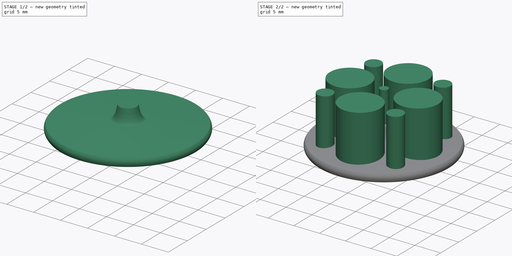
[diagram: build sequence overview — one tinted view per stage of 2, left to right]
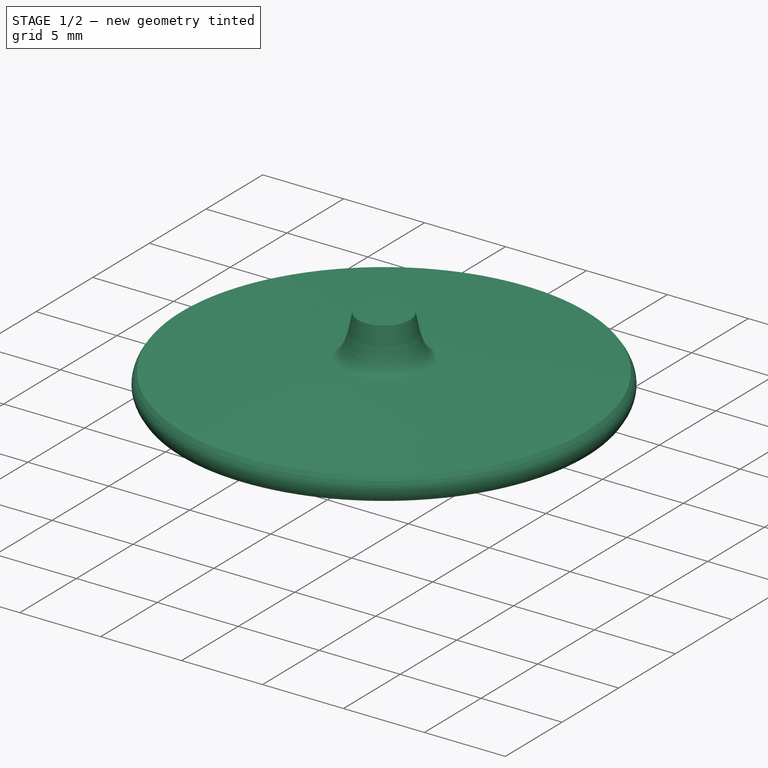
[diagram: stage 1 of 2 — iso view after this stage's code; geometry added in this stage tinted green]
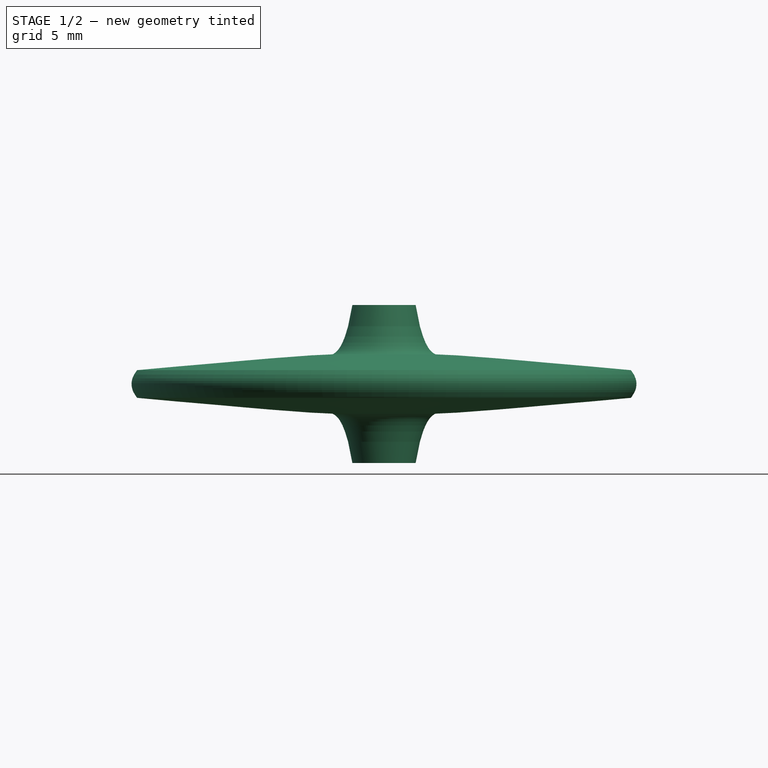
[diagram: stage 1 of 2 — front view after this stage's code; geometry added in this stage tinted green]
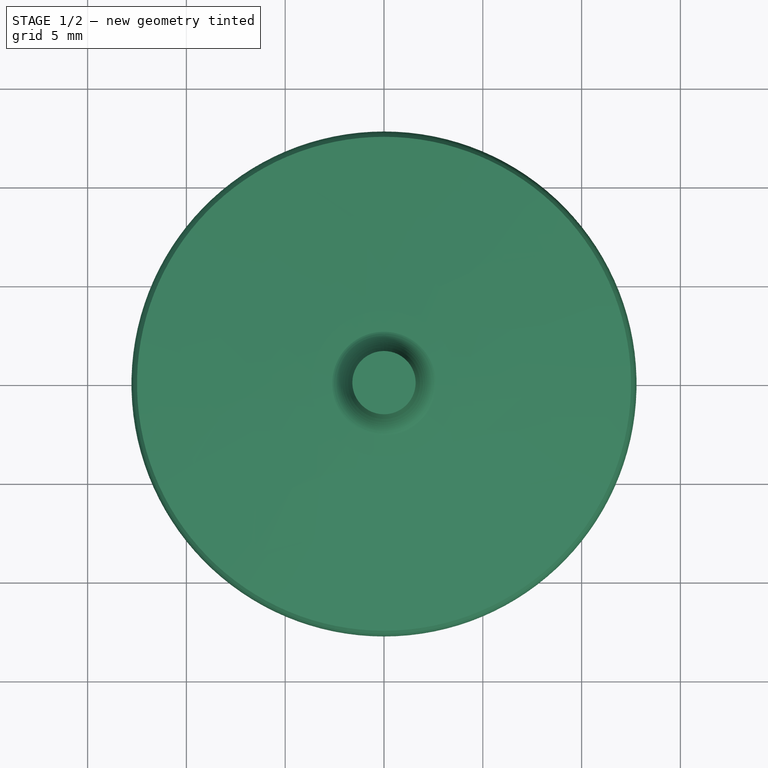
[diagram: stage 1 of 2 — top view after this stage's code; geometry added in this stage tinted green]
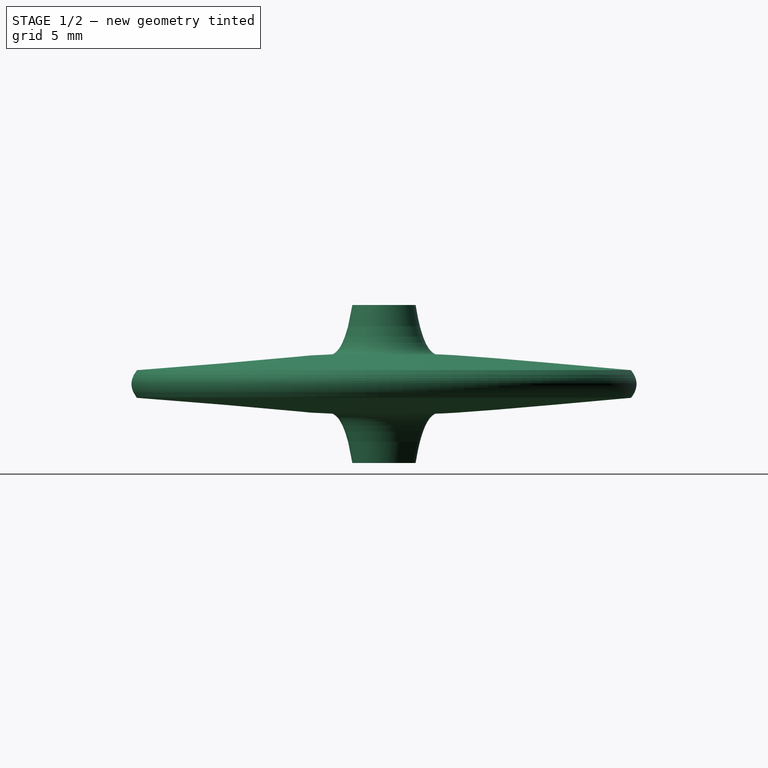
[diagram: stage 1 of 2 — right view after this stage's code; geometry added in this stage tinted green]
FCSTD DOCUMENT  (FreeCAD 0.19R0.19.2)
Label: 009
License: All rights reserved
LicenseURL: http://en.wikipedia.org/wiki/All_rights_reserved
objects: Sketcher::SketchObject×2, Part::Extrusion×1, Part::Revolution×1
note: 4 computed .brp shape members not serialized (recipe doc carries the construction recipe); baked Part::Feature solids carry a one-line shape summary decoded from their .brp

FEATURE [Sketcher::SketchObject] Sketch001
  FullyConstrained = true
  Placement = pos=(0,0,0) rot=(0.57735,0.57735,0.57735;2.0944rad)
  sketch-geometry (63):
    g0: LineSegment StartX=1.6 StartY=4 StartZ=0 EndX=0 EndY=4 EndZ=0
    g1: Circle CenterX=12.5 CenterY=0.7 CenterZ=0 NormalX=0 NormalY=0 NormalZ=1 AngleXU=0 Radius=1
    g2: Circle CenterX=13.06 CenterY=0 CenterZ=0 NormalX=0 NormalY=0 NormalZ=1 AngleXU=0 Radius=1
    g3: Circle CenterX=12.5 CenterY=-0.7 CenterZ=0 NormalX=0 NormalY=0 NormalZ=1 AngleXU=0 Radius=1
    g4: BSplineCurve PolesCount=3 KnotsCount=2 Degree=2 IsPeriodic=0
    g5: GeomPoint X=12.5 Y=0.7 Z=0
    g6: GeomPoint X=12.5 Y=-0.7 Z=0
    g7: Circle CenterX=1.6 CenterY=4 CenterZ=0 NormalX=0 NormalY=0 NormalZ=1 AngleXU=0 Radius=1
    g8: Circle CenterX=1.96118 CenterY=1.73941 CenterZ=0 NormalX=0 NormalY=0 NormalZ=1 AngleXU=0 Radius=1
    g9: Circle CenterX=2.61896 CenterY=1.5 CenterZ=0 NormalX=0 NormalY=0 NormalZ=1 AngleXU=0 Radius=1
    g10: BSplineCurve PolesCount=3 KnotsCount=2 Degree=2 IsPeriodic=0
    g11: GeomPoint X=1.6 Y=4 Z=0
    g12: GeomPoint X=2.61896 Y=1.5 Z=0
    g13: LineSegment StartX=1.6 StartY=-4 StartZ=0 EndX=0 EndY=-4 EndZ=0
    g14: LineSegment StartX=0 StartY=-4 StartZ=0 EndX=0 EndY=4 EndZ=0
    g15: Circle CenterX=1.6 CenterY=-4 CenterZ=0 NormalX=0 NormalY=0 NormalZ=1 AngleXU=0 Radius=1
    g16: Circle CenterX=1.96118 CenterY=-1.73941 CenterZ=0 NormalX=0 NormalY=0 NormalZ=1 AngleXU=0 Radius=1
    g17: Circle CenterX=2.61896 CenterY=-1.5 CenterZ=0 NormalX=0 NormalY=0 NormalZ=1 AngleXU=0 Radius=1
    g18: BSplineCurve PolesCount=3 KnotsCount=2 Degree=2 IsPeriodic=0
    g19: GeomPoint X=1.6 Y=-4 Z=0
    g20: GeomPoint X=2.61896 Y=-1.5 Z=0
    g21: Circle CenterX=12.5 CenterY=0.7 CenterZ=0 NormalX=0 NormalY=0 NormalZ=1 AngleXU=0 Radius=1
    g22: Circle CenterX=3.81896 CenterY=1.5 CenterZ=0 NormalX=0 NormalY=0 NormalZ=1 AngleXU=0 Radius=1
    g23: Circle CenterX=2.61896 CenterY=1.5 CenterZ=0 NormalX=0 NormalY=0 NormalZ=1 AngleXU=0 Radius=1
    g24: BSplineCurve PolesCount=3 KnotsCount=2 Degree=2 IsPeriodic=0
    g25: GeomPoint X=12.5 Y=0.7 Z=0
    g26: GeomPoint X=2.61896 Y=1.5 Z=0
    g27: Circle CenterX=12.5 CenterY=-0.7 CenterZ=0 NormalX=0 NormalY=0 NormalZ=1 AngleXU=0 Radius=1
    g28: Circle CenterX=3.81896 CenterY=-1.5 CenterZ=0 NormalX=0 NormalY=0 NormalZ=1 AngleXU=0 Radius=1
    g29: Circle CenterX=2.61896 CenterY=-1.5 CenterZ=0 NormalX=0 NormalY=0 NormalZ=1 AngleXU=0 Radius=1
    g30: BSplineCurve PolesCount=3 KnotsCount=2 Degree=2 IsPeriodic=0
    g31: GeomPoint X=12.5 Y=-0.7 Z=0
    g32: GeomPoint X=2.61896 Y=-1.5 Z=0
    g33: LineSegment StartX=2.61896 StartY=1.5 StartZ=0 EndX=2.61896 EndY=1.7 EndZ=0
    g34: LineSegment StartX=1.96118 StartY=1.73941 StartZ=0 EndX=1.96118 EndY=1.93941 EndZ=0
    g35: LineSegment StartX=2.61896 StartY=-1.5 StartZ=0 EndX=2.61896 EndY=-1.7 EndZ=0
    g36: LineSegment StartX=1.96118 StartY=-1.73941 StartZ=0 EndX=1.96118 EndY=-1.93941 EndZ=0
    g37: LineSegment StartX=3.81896 StartY=-1.5 StartZ=0 EndX=3.81896 EndY=-1.6 EndZ=0
    g38: LineSegment StartX=3.81896 StartY=1.5 StartZ=0 EndX=3.81896 EndY=1.6 EndZ=0
    g39: Circle CenterX=1.6 CenterY=4 CenterZ=0 NormalX=0 NormalY=0 NormalZ=1 AngleXU=0 Radius=1
    g40: Circle CenterX=1.96118 CenterY=1.93941 CenterZ=0 NormalX=0 NormalY=0 NormalZ=1 AngleXU=0 Radius=1
    g41: Circle CenterX=2.61896 CenterY=1.7 CenterZ=0 NormalX=0 NormalY=0 NormalZ=1 AngleXU=0 Radius=1
    g42: BSplineCurve PolesCount=3 KnotsCount=2 Degree=2 IsPeriodic=0
    g43: GeomPoint X=1.6 Y=4 Z=0
    g44: GeomPoint X=2.61896 Y=1.7 Z=0
    g45: Circle CenterX=2.61896 CenterY=1.7 CenterZ=0 NormalX=0 NormalY=0 NormalZ=1 AngleXU=0 Radius=1
    g46: Circle CenterX=3.81896 CenterY=1.5 CenterZ=0 NormalX=0 NormalY=0 NormalZ=1 AngleXU=0 Radius=1
    g47: Circle CenterX=12.5 CenterY=0.7 CenterZ=0 NormalX=0 NormalY=0 NormalZ=1 AngleXU=0 Radius=1
    g48: BSplineCurve PolesCount=3 KnotsCount=2 Degree=2 IsPeriodic=0
    g49: GeomPoint X=2.61896 Y=1.7 Z=0
    g50: GeomPoint X=12.5 Y=0.7 Z=0
    g51: Circle CenterX=1.6 CenterY=-4 CenterZ=0 NormalX=0 NormalY=0 NormalZ=1 AngleXU=0 Radius=1
    g52: Circle CenterX=1.96118 CenterY=-1.93941 CenterZ=0 NormalX=0 NormalY=0 NormalZ=1 AngleXU=0 Radius=1
    g53: Circle CenterX=2.61896 CenterY=-1.7 CenterZ=0 NormalX=0 NormalY=0 NormalZ=1 AngleXU=0 Radius=1
    g54: BSplineCurve PolesCount=3 KnotsCount=2 Degree=2 IsPeriodic=0
    g55: GeomPoint X=1.6 Y=-4 Z=0
    g56: GeomPoint X=2.61896 Y=-1.7 Z=0
    g57: Circle CenterX=2.61896 CenterY=-1.7 CenterZ=0 NormalX=0 NormalY=0 NormalZ=1 AngleXU=0 Radius=1
    g58: Circle CenterX=3.81896 CenterY=-1.5 CenterZ=0 NormalX=0 NormalY=0 NormalZ=1 AngleXU=0 Radius=1
    g59: Circle CenterX=12.5 CenterY=-0.7 CenterZ=0 NormalX=0 NormalY=0 NormalZ=1 AngleXU=0 Radius=1
    g60: BSplineCurve PolesCount=3 KnotsCount=2 Degree=2 IsPeriodic=0
    g61: GeomPoint X=2.61896 Y=-1.7 Z=0
    g62: GeomPoint X=12.5 Y=-0.7 Z=0
  constraints (120):
    c: Horizontal(g0)
    c: Distance(g0) = 1.6
    c: Weight(g1) = 1
    c: Equal(g1,g2)
    c: Equal(g1,g3)
    c: InternalAlignment(g1,g4)
    c: InternalAlignment(g2,g4)
    c: InternalAlignment(g3,g4)
    c: InternalAlignment(g5,g4)
    c: InternalAlignment(g6,g4)
    c: Block(g4)
    c: Block(g0)
    c: Coincident(g10,g0)
    c: Weight(g7) = 1
    c: Equal(g7,g8)
    c: Equal(g7,g9)
    c: InternalAlignment(g7,g10)
    c: InternalAlignment(g8,g10)
    c: InternalAlignment(g9,g10)
    c: InternalAlignment(g11,g10)
    c: InternalAlignment(g12,g10)
    c: Horizontal(g13)
    c: Distance(g13) = 1.6
    c: Coincident(g14,g13)
    c: Coincident(g14,g0)
    c: Vertical(g14)
    c: Block(g13)
    c: Coincident(g18,g13)
    c: Weight(g15) = 1
    c: Equal(g15,g16)
    c: Equal(g15,g17)
    c: InternalAlignment(g15,g18)
    c: InternalAlignment(g16,g18)
    c: InternalAlignment(g17,g18)
    c: InternalAlignment(g19,g18)
    c: InternalAlignment(g20,g18)
    c: Block(g18)
    c: Block(g10)
    c: Coincident(g24,g4)
    c: Weight(g21) = 1
    c: Equal(g21,g22)
    c: Equal(g21,g23)
    c: InternalAlignment(g21,g24)
    c: InternalAlignment(g22,g24)
    c: InternalAlignment(g23,g24)
    c: InternalAlignment(g25,g24)
    c: InternalAlignment(g26,g24)
    c: Coincident(g30,g4)
    c: Weight(g27) = 1
    c: Equal(g27,g28)
    c: Equal(g27,g29)
    c: InternalAlignment(g27,g30)
    c: InternalAlignment(g28,g30)
    c: InternalAlignment(g29,g30)
    c: InternalAlignment(g31,g30)
    c: InternalAlignment(g32,g30)
    c: Block(g24)
    c: Block(g30)
    c: Coincident(g33,g10)
    c: Vertical(g33)
    c: Distance(g33) = 0.2
    c: Vertical(g34)
    c: Equal(g33,g34) = 0.6
    c: Coincident(g34,g8)
    c: Coincident(g35,g18)
    c: Vertical(g35)
    c: Distance(g35) = 0.2
    c: Vertical(g36)
    c: Equal(g35,g36) = 0.2
    c: Coincident(g36,g16)
    c: Coincident(g37,g28)
    c: Vertical(g37)
    c: Distance(g37) = 0.1
    c: Coincident(g38,g22)
    c: Vertical(g38)
    c: Distance(g38) = 0.1
    c: Coincident(g42,g0)
    c: Weight(g39) = 1
    c: Equal(g39,g40)
    c: Coincident(g40,g34)
    c: Equal(g39,g41)
    c: Coincident(g42,g33)
    c: InternalAlignment(g39,g42)
    c: InternalAlignment(g40,g42)
    c: InternalAlignment(g41,g42)
    c: InternalAlignment(g43,g42)
    c: InternalAlignment(g44,g42)
    c: Coincident(g48,g33)
    c: Weight(g45) = 1
    c: Equal(g45,g46)
    c: Coincident(g46,g38)
    c: Equal(g45,g47)
    c: Coincident(g48,g4)
    c: InternalAlignment(g45,g48)
    c: InternalAlignment(g46,g48)
    c: InternalAlignment(g47,g48)
    c: InternalAlignment(g49,g48)
    c: InternalAlignment(g50,g48)
    c: Coincident(g54,g13)
    c: Weight(g51) = 1
    c: Equal(g51,g52)
    c: Coincident(g52,g36)
    c: Equal(g51,g53)
    c: Coincident(g54,g35)
    c: InternalAlignment(g51,g54)
    c: InternalAlignment(g52,g54)
    c: InternalAlignment(g53,g54)
    c: InternalAlignment(g55,g54)
    c: InternalAlignment(g56,g54)
    c: Coincident(g60,g35)
    c: Weight(g57) = 1
    c: Equal(g57,g58)
    c: Coincident(g58,g37)
    c: Equal(g57,g59)
    c: Coincident(g60,g4)
    c: InternalAlignment(g57,g60)
    c: InternalAlignment(g58,g60)
    c: InternalAlignment(g59,g60)
    c: InternalAlignment(g61,g60)
    c: InternalAlignment(g62,g60)
FEATURE [Part::Revolution] Revolve
  Angle = 360
  Axis = (0,0,1)
  Base = (0,0,0)
  FaceMakerClass = Part::FaceMakerBullseye
  Solid = true
  Source = -> Sketch001
  Symmetric = false
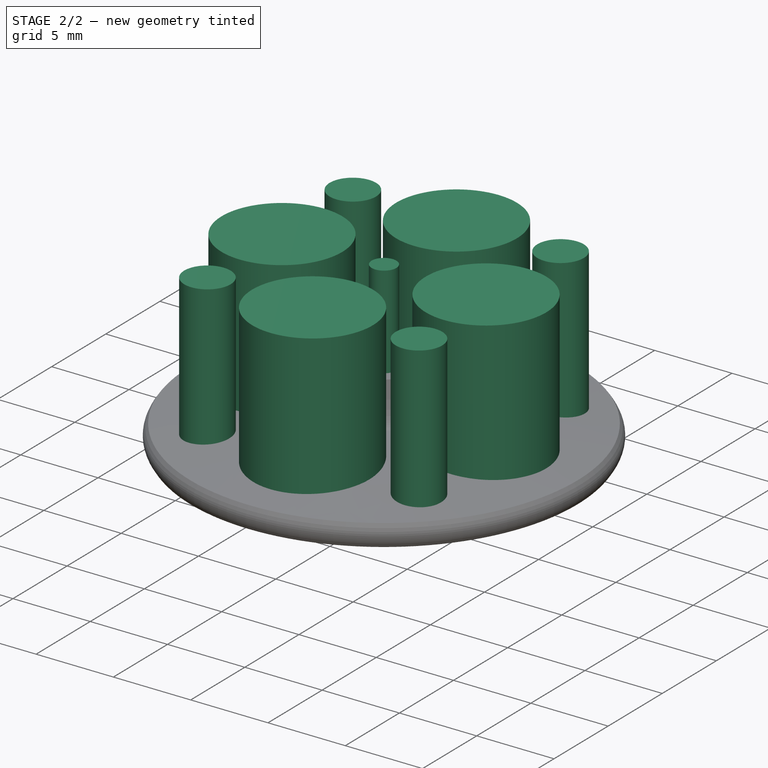
[diagram: stage 2 of 2 — iso view after this stage's code; geometry added in this stage tinted green]
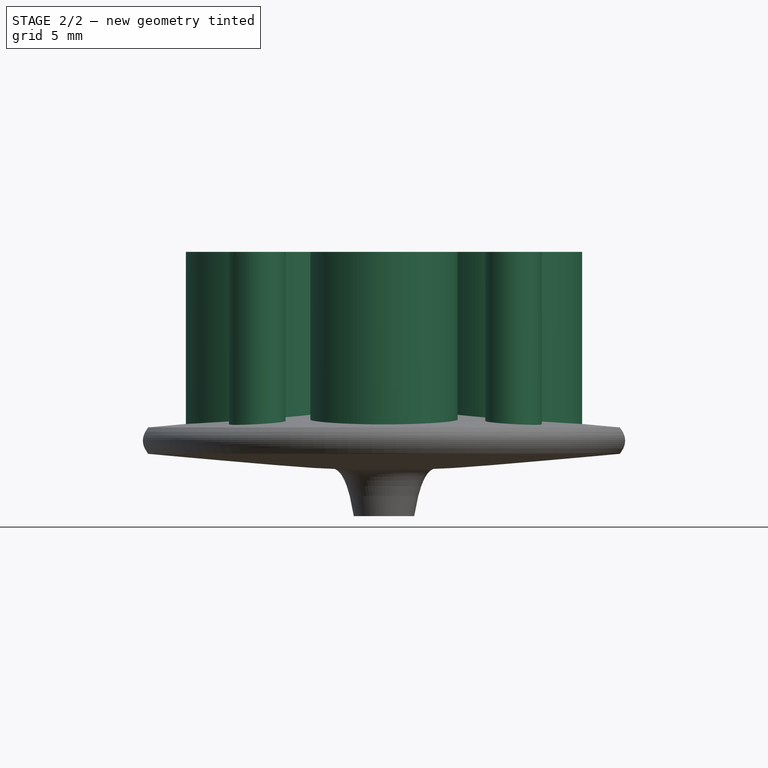
[diagram: stage 2 of 2 — front view after this stage's code; geometry added in this stage tinted green]
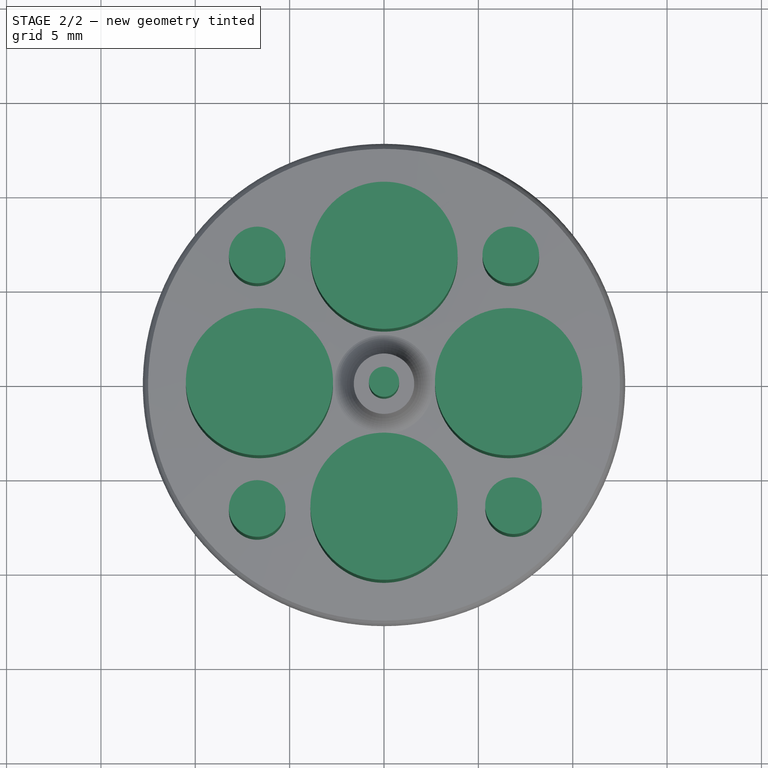
[diagram: stage 2 of 2 — top view after this stage's code; geometry added in this stage tinted green]
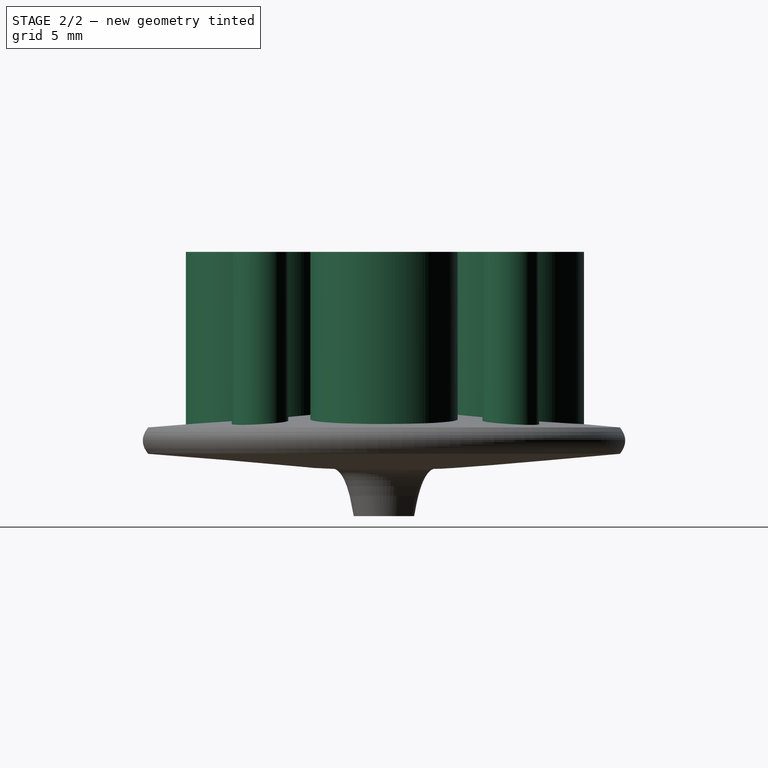
[diagram: stage 2 of 2 — right view after this stage's code; geometry added in this stage tinted green]
FEATURE [Sketcher::SketchObject] Sketch  label="holes"
  FullyConstrained = true
  sketch-geometry (9):
    g0: Circle CenterX=0 CenterY=0 CenterZ=0 NormalX=0 NormalY=0 NormalZ=1 AngleXU=0 Radius=0.8
    g1: Circle CenterX=0 CenterY=6.7 CenterZ=0 NormalX=0 NormalY=0 NormalZ=1 AngleXU=0 Radius=3.9
    g2: Circle CenterX=6.6 CenterY=0 CenterZ=0 NormalX=0 NormalY=0 NormalZ=1 AngleXU=0 Radius=3.9
    g3: Circle CenterX=-6.6 CenterY=0 CenterZ=0 NormalX=0 NormalY=0 NormalZ=1 AngleXU=0 Radius=3.9
    g4: Circle CenterX=0 CenterY=-6.6 CenterZ=0 NormalX=0 NormalY=0 NormalZ=1 AngleXU=0 Radius=3.9
    g5: Circle CenterX=6.71751 CenterY=6.71751 CenterZ=0 NormalX=0 NormalY=0 NormalZ=1 AngleXU=0 Radius=1.5
    g6: Circle CenterX=-6.71751 CenterY=-6.71751 CenterZ=0 NormalX=0 NormalY=0 NormalZ=1 AngleXU=0 Radius=1.5
    g7: Circle CenterX=-6.71751 CenterY=6.71751 CenterZ=0 NormalX=0 NormalY=0 NormalZ=1 AngleXU=0 Radius=1.5
    g8: Circle CenterX=6.86196 CenterY=-6.56989 CenterZ=0 NormalX=0 NormalY=0 NormalZ=1 AngleXU=0 Radius=1.5
  constraints (9):
    c: Block(g5)
    c: Block(g2)
    c: Block(g1)
    c: Block(g7)
    c: Block(g3)
    c: Block(g6)
    c: Block(g4)
    c: Block(g0)
    c: Block(g8)
FEATURE [Part::Extrusion] Extrude
  Base = -> Sketch
  Dir = (0,0,1)
  DirMode = 2
  FaceMakerClass = Part::FaceMakerBullseye
  LengthFwd = 10
  LengthRev = 0
  Solid = true
  Symmetric = false
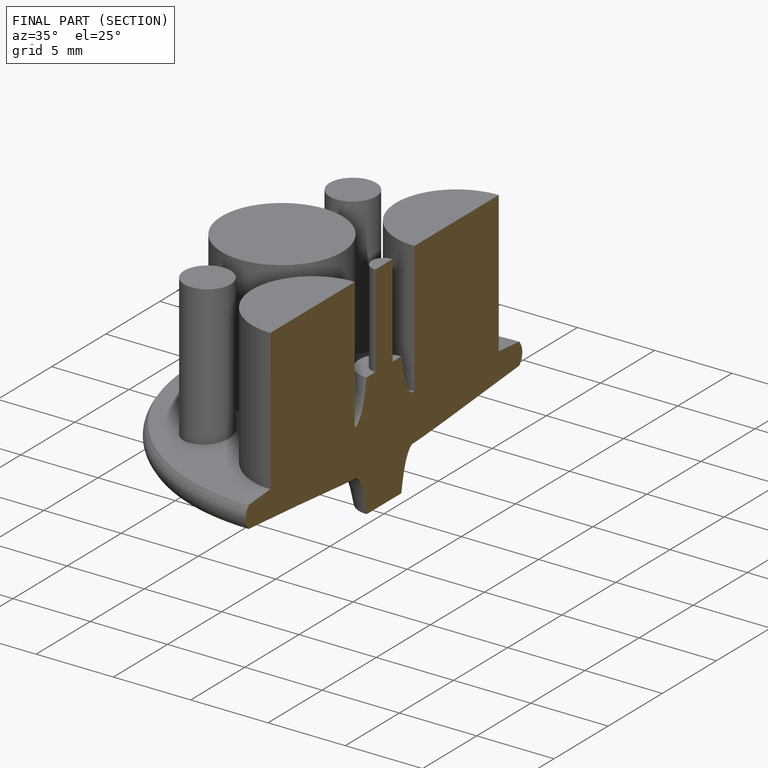
[diagram: finished part — half-section view (interior)]
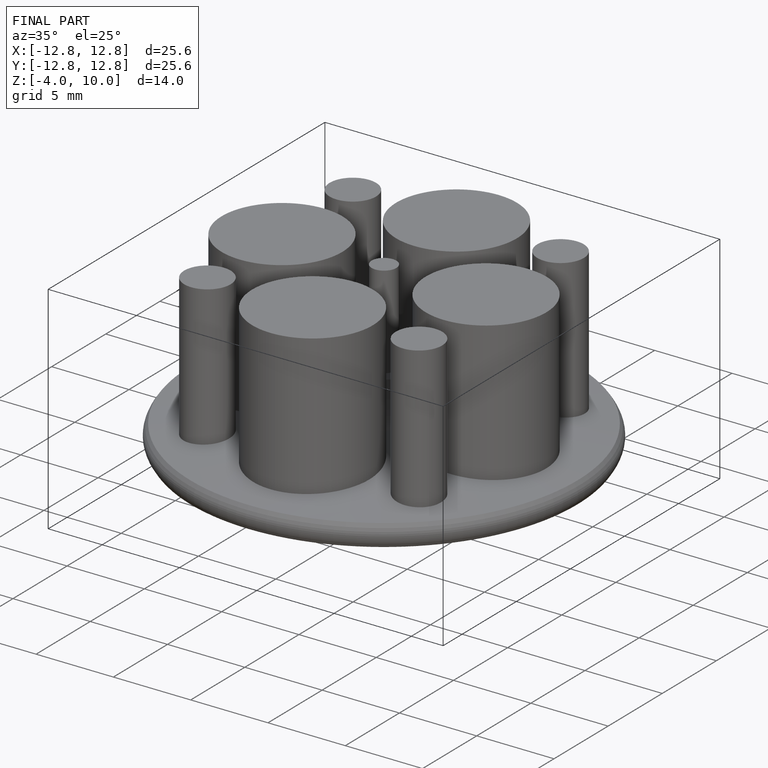
[diagram: finished part — iso view with bounding-box wireframe]
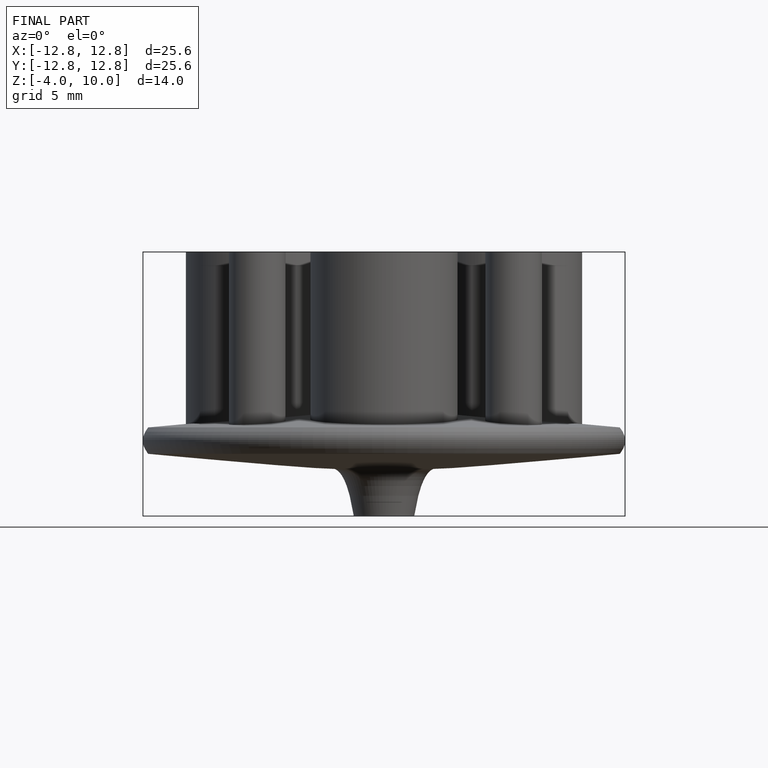
[diagram: finished part — front view with bounding-box wireframe]
